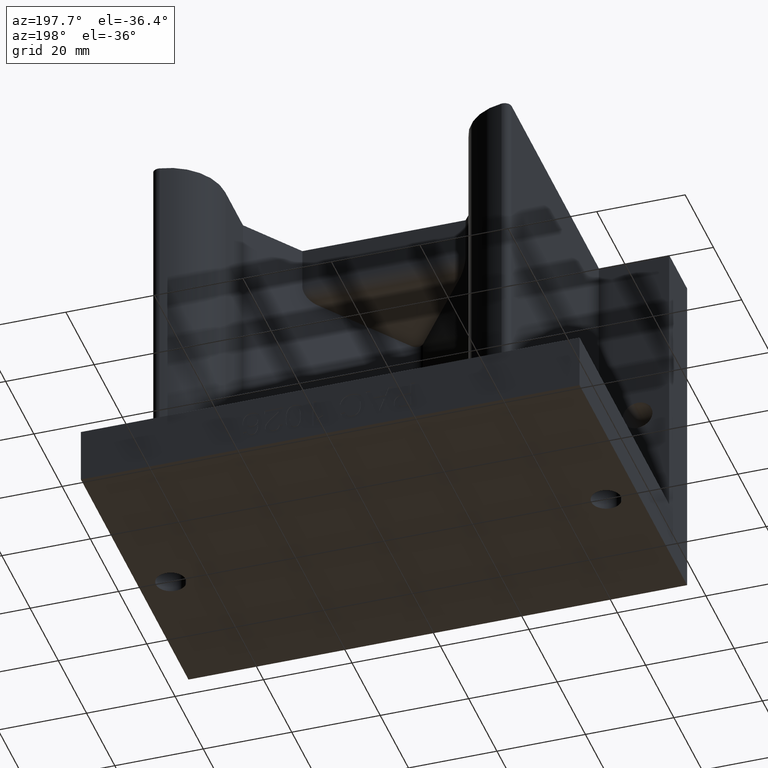
[diagram: clean part render]
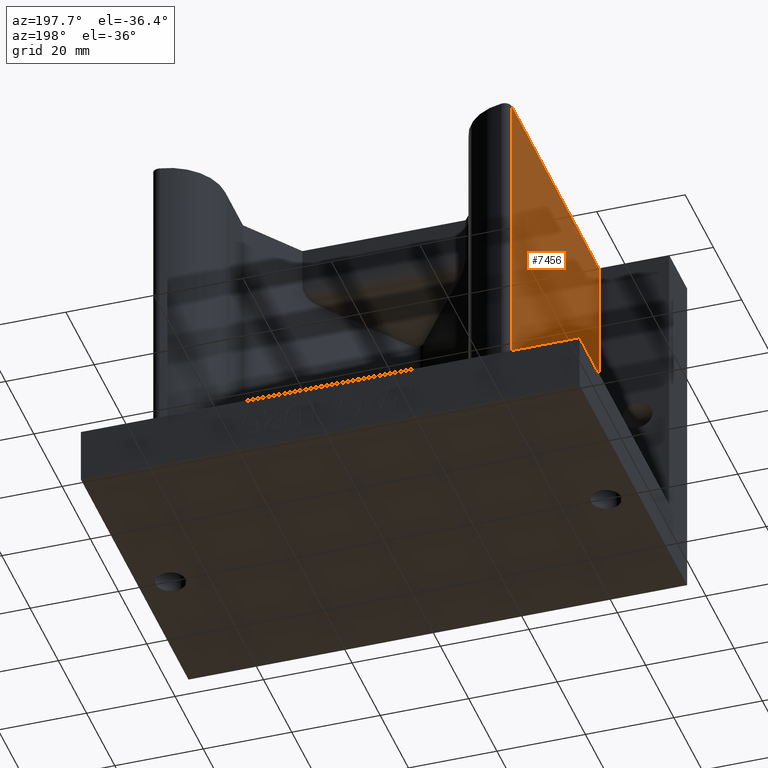
[diagram: same view with one face highlighted and labeled with its STEP entity id]
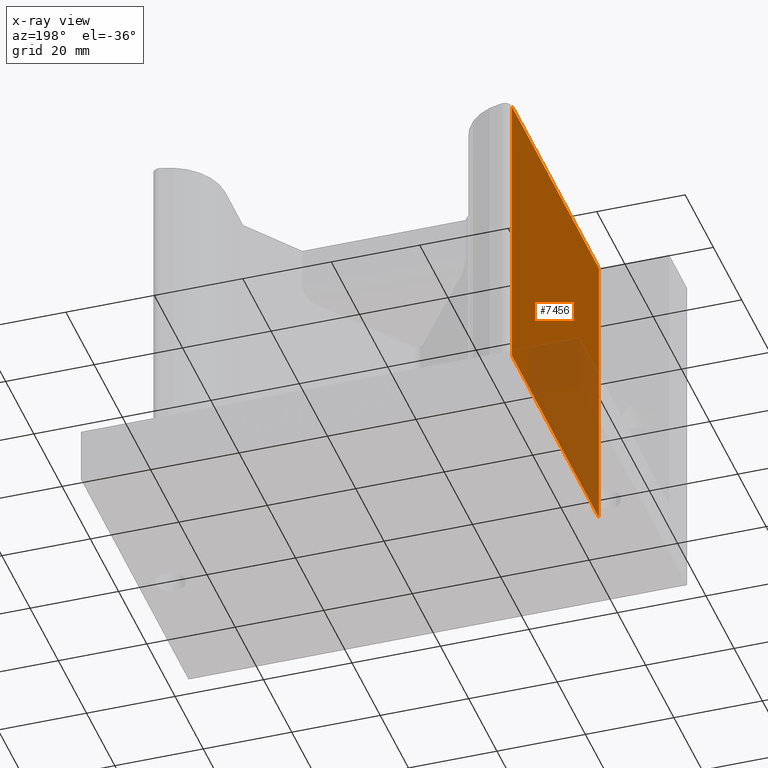
[diagram: x-ray of the same camera — body ghosted, the highlighted face saturated]
A machine part, auxiliary view. The second image highlights one B-rep face of the part: STEP entity #7456.
The next image is the same camera in x-ray: the body ghosted, the highlighted face saturated — about 34% of this face is hidden behind the body in this view.
In plain terms, the highlighted planar face has unit normal (1, 0, 0).
Its self-contained STEP definition (entity closure, byte-faithful):
#297 = DIRECTION ( 'NONE',  ( -1.092739197465705300E-016, 1.000000000000000000, -0.0000000000000000000 ) ) ;
#298 = CARTESIAN_POINT ( 'NONE',  ( -1.593750000000000400, 1.499999999999999800, 3.125000000000000000 ) ) ;
#419 = DIRECTION ( 'NONE',  ( -0.0000000000000000000, -0.0000000000000000000, 1.000000000000000000 ) ) ;
#430 = CARTESIAN_POINT ( 'NONE',  ( -1.593750000000000200, -1.000000000000000000, 0.5000000000000001100 ) ) ;
#432 = DIRECTION ( 'NONE',  ( -1.092739197465705300E-016, 1.000000000000000000, -0.0000000000000000000 ) ) ;
#433 = CARTESIAN_POINT ( 'NONE',  ( -1.593750000000000400, 1.499999999999999800, 0.5000000000000001100 ) ) ;
#438 = DIRECTION ( 'NONE',  ( 0.0000000000000000000, 0.0000000000000000000, -1.000000000000000000 ) ) ;
#439 = CARTESIAN_POINT ( 'NONE',  ( -1.593750000000000400, 1.433012701892221000, 0.5000000000000001100 ) ) ;
#1439 = LINE ( 'NONE', #433, #1447 ) ;
#1447 = VECTOR ( 'NONE', #432, 39.37007874015748100 ) ;
#1450 = LINE ( 'NONE', #439, #1451 ) ;
#1451 = VECTOR ( 'NONE', #438, 39.37007874015748100 ) ;
#1455 = LINE ( 'NONE', #430, #1457 ) ;
#1457 = VECTOR ( 'NONE', #419, 39.37007874015748100 ) ;
#1474 = VECTOR ( 'NONE', #297, 39.37007874015748100 ) ;
#1478 = LINE ( 'NONE', #298, #1474 ) ;
#3117 = EDGE_CURVE ( 'NONE', #8553, #8539, #1450, .T. ) ;
#3119 = EDGE_CURVE ( 'NONE', #8537, #8539, #1439, .T. ) ;
#3122 = EDGE_CURVE ( 'NONE', #8537, #8561, #1455, .T. ) ;
#3140 = EDGE_CURVE ( 'NONE', #8561, #8553, #1478, .T. ) ;
#3925 = CARTESIAN_POINT ( 'NONE',  ( -1.593750000000000200, -1.000000000000000000, 0.5000000000000001100 ) ) ;
#3927 = CARTESIAN_POINT ( 'NONE',  ( -1.593750000000000400, 1.433012701892221000, 0.5000000000000001100 ) ) ;
#3941 = CARTESIAN_POINT ( 'NONE',  ( -1.593750000000000400, 1.433012701892221000, 3.125000000000000000 ) ) ;
#3949 = CARTESIAN_POINT ( 'NONE',  ( -1.593750000000000200, -1.000000000000000000, 3.125000000000000000 ) ) ;
#4031 = AXIS2_PLACEMENT_3D ( 'NONE', #6391, #6309, #6308 ) ;
#4567 = ORIENTED_EDGE ( 'NONE', *, *, #3122, .T. ) ;
#4569 = ORIENTED_EDGE ( 'NONE', *, *, #3119, .F. ) ;
#4570 = ORIENTED_EDGE ( 'NONE', *, *, #3117, .T. ) ;
#4571 = ORIENTED_EDGE ( 'NONE', *, *, #3140, .T. ) ;
#6186 = EDGE_LOOP ( 'NONE', ( #4571, #4570, #4569, #4567 ) ) ;
#6308 = DIRECTION ( 'NONE',  ( -1.092739197465705300E-016, 1.000000000000000000, 0.0000000000000000000 ) ) ;
#6309 = DIRECTION ( 'NONE',  ( 1.000000000000000000, 1.092739197465705300E-016, 0.0000000000000000000 ) ) ;
#6391 = CARTESIAN_POINT ( 'NONE',  ( -1.593750000000000400, 1.499999999999999800, 0.5000000000000001100 ) ) ;
#6394 = PLANE ( 'NONE',  #4031 ) ;
#7456 = ADVANCED_FACE ( 'NONE', ( #7583 ), #6394, .F. ) ;
#7583 = FACE_OUTER_BOUND ( 'NONE', #6186, .T. ) ;
#8537 = VERTEX_POINT ( 'NONE', #3925 ) ;
#8539 = VERTEX_POINT ( 'NONE', #3927 ) ;
#8553 = VERTEX_POINT ( 'NONE', #3941 ) ;
#8561 = VERTEX_POINT ( 'NONE', #3949 ) ;